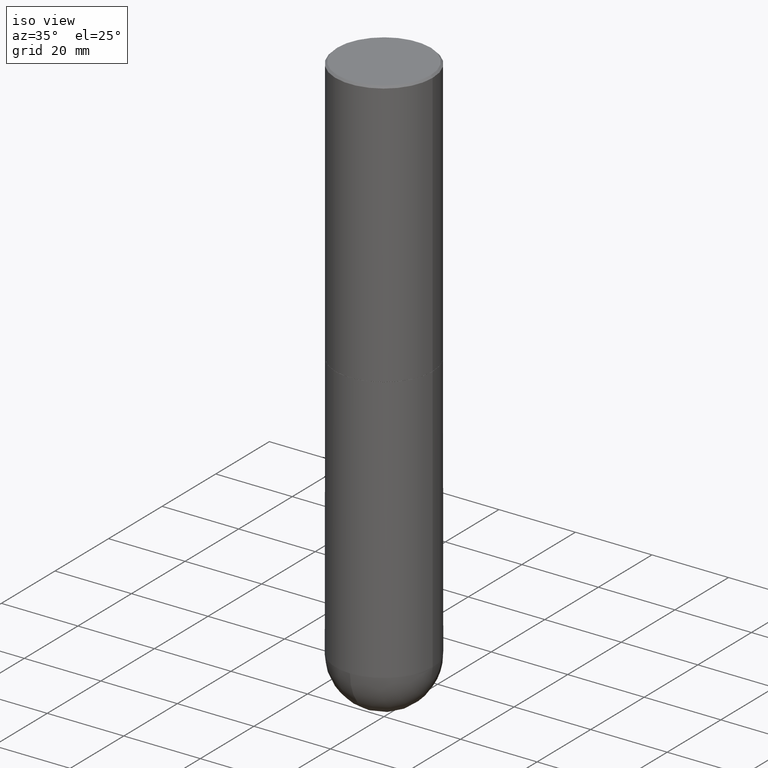
[diagram: clean part render]
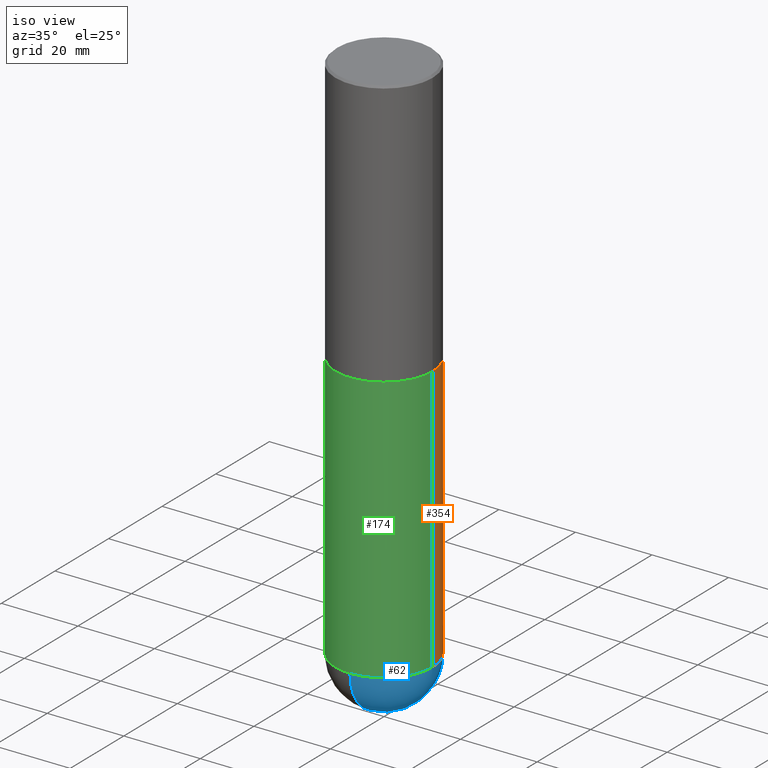
[diagram: same view with three faces highlighted in distinct colors, each labeled with its STEP entity id]
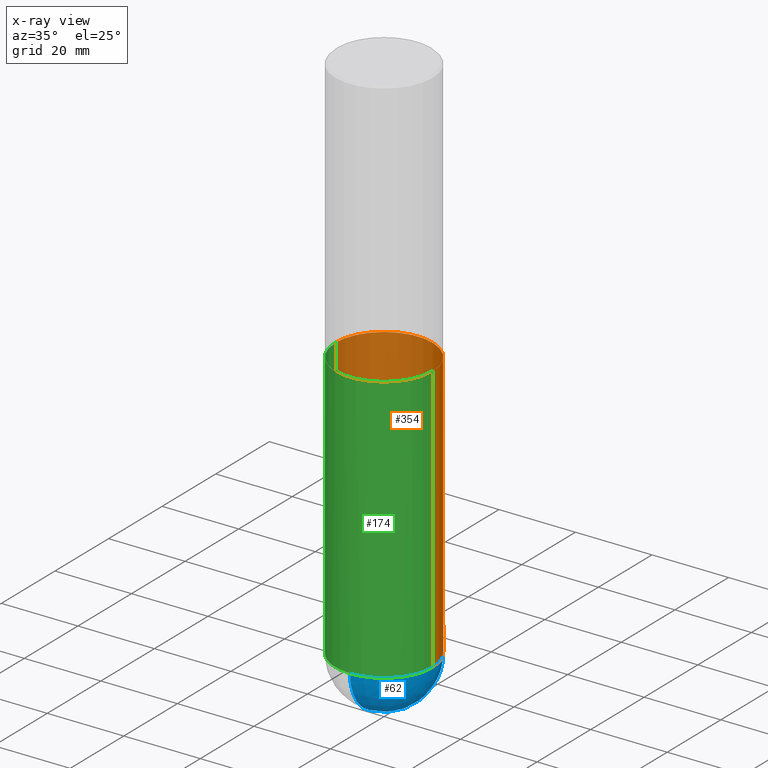
[diagram: x-ray of the same camera — body ghosted, the three highlighted faces saturated]
A machine part, iso view with three faces highlighted in distinct colors.
The next image is the same camera in x-ray (body ghosted, the three faces saturated) — at least one of them is partly hidden behind the body in this view.
Their STEP definitions:

[orange] entity #354 — the highlighted cylindrical surface (partial cylindrical patch) has radius 12.7 mm, axis along (-0, 0, 1).
#6 = CARTESIAN_POINT ( 'NONE',  ( 3.491481338843265489E-15, 0.4999999999999805711, -5.500000000000002665 ) ) ;
#10 = VERTEX_POINT ( 'NONE', #6 ) ;
#18 = DIRECTION ( 'NONE',  ( -2.445468806185136597E-29, 3.491481338843145583E-15, 1.000000000000000000 ) ) ;
#23 = CARTESIAN_POINT ( 'NONE',  ( -0.5000000000000000000, -1.084964684392748096E-14, -5.500000000000000888 ) ) ;
#24 = DIRECTION ( 'NONE',  ( 1.000000000000000000, -6.982962677686270655E-15, 0.000000000000000000 ) ) ;
#33 = EDGE_LOOP ( 'NONE', ( #404, #180, #411, #40, #331 ) ) ;
#40 = ORIENTED_EDGE ( 'NONE', *, *, #143, .F. ) ;
#63 = DIRECTION ( 'NONE',  ( -2.445468806185136877E-29, 3.491481338843145188E-15, 1.000000000000000000 ) ) ;
#66 = VECTOR ( 'NONE', #63, 39.37007874015748143 ) ;
#71 = FACE_OUTER_BOUND ( 'NONE', #33, .T. ) ;
#73 = CIRCLE ( 'NONE', #198, 0.5000000000000000000 ) ;
#99 = VERTEX_POINT ( 'NONE', #173 ) ;
#102 = AXIS2_PLACEMENT_3D ( 'NONE', #246, #18, #240 ) ;
#111 = CIRCLE ( 'NONE', #150, 0.5000000000000000000 ) ;
#112 = CARTESIAN_POINT ( 'NONE',  ( 0.5000000000000000000, -3.491481338843133355E-15, 2.438088387897967896E-29 ) ) ;
#125 = EDGE_CURVE ( 'NONE', #99, #320, #374, .T. ) ;
#126 = DIRECTION ( 'NONE',  ( -2.445468806185136597E-29, 3.491481338843145583E-15, 1.000000000000000000 ) ) ;
#128 = CARTESIAN_POINT ( 'NONE',  ( 0.5000000000000000000, -1.789384186157111367E-14, -5.500000000000000888 ) ) ;
#143 = EDGE_CURVE ( 'NONE', #381, #99, #366, .T. ) ;
#150 = AXIS2_PLACEMENT_3D ( 'NONE', #160, #126, #322 ) ;
#151 = CARTESIAN_POINT ( 'NONE',  ( 1.345007843401825128E-28, -1.920314736363730603E-14, -5.500000000000000888 ) ) ;
#160 = CARTESIAN_POINT ( 'NONE',  ( 1.345007843401825128E-28, -1.920314736363730603E-14, -5.500000000000000888 ) ) ;
#163 = CARTESIAN_POINT ( 'NONE',  ( 0.000000000000000000, 0.000000000000000000, 0.000000000000000000 ) ) ;
#173 = CARTESIAN_POINT ( 'NONE',  ( 0.5000000000000000000, -1.309305502066178637E-14, -2.750000000000000444 ) ) ;
#180 = ORIENTED_EDGE ( 'NONE', *, *, #384, .T. ) ;
#184 = AXIS2_PLACEMENT_3D ( 'NONE', #163, #412, #227 ) ;
#186 = EDGE_CURVE ( 'NONE', #381, #10, #73, .T. ) ;
#197 = VERTEX_POINT ( 'NONE', #23 ) ;
#198 = AXIS2_PLACEMENT_3D ( 'NONE', #151, #349, #24 ) ;
#223 = LINE ( 'NONE', #410, #66 ) ;
#227 = DIRECTION ( 'NONE',  ( 1.000000000000000000, -6.982962677686266711E-15, 4.876176775795935793E-29 ) ) ;
#240 = DIRECTION ( 'NONE',  ( 1.000000000000000000, -6.982962677686266711E-15, 0.000000000000000000 ) ) ;
#244 = DIRECTION ( 'NONE',  ( -2.445468806185136877E-29, 3.491481338843145188E-15, 1.000000000000000000 ) ) ;
#246 = CARTESIAN_POINT ( 'NONE',  ( 6.725039217009125641E-29, -9.601573681818653015E-15, -2.750000000000000444 ) ) ;
#255 = CARTESIAN_POINT ( 'NONE',  ( -0.5000000000000000000, -1.084964684392747780E-14, -2.750000000000000444 ) ) ;
#305 = EDGE_CURVE ( 'NONE', #10, #197, #111, .T. ) ;
#320 = VERTEX_POINT ( 'NONE', #255 ) ;
#322 = DIRECTION ( 'NONE',  ( 1.000000000000000000, -6.982962677686270655E-15, 0.000000000000000000 ) ) ;
#327 = CYLINDRICAL_SURFACE ( 'NONE', #184, 0.5000000000000000000 ) ;
#331 = ORIENTED_EDGE ( 'NONE', *, *, #186, .T. ) ;
#349 = DIRECTION ( 'NONE',  ( -2.445468806185136597E-29, 3.491481338843145583E-15, 1.000000000000000000 ) ) ;
#354 = ADVANCED_FACE ( 'NONE', ( #71 ), #327, .T. ) ;
#366 = LINE ( 'NONE', #112, #392 ) ;
#374 = CIRCLE ( 'NONE', #102, 0.5000000000000000000 ) ;
#381 = VERTEX_POINT ( 'NONE', #128 ) ;
#384 = EDGE_CURVE ( 'NONE', #197, #320, #223, .T. ) ;
#392 = VECTOR ( 'NONE', #244, 39.37007874015748143 ) ;
#404 = ORIENTED_EDGE ( 'NONE', *, *, #305, .T. ) ;
#410 = CARTESIAN_POINT ( 'NONE',  ( -0.5000000000000000000, 3.552713678800500929E-15, -2.459467545127452891E-29 ) ) ;
#411 = ORIENTED_EDGE ( 'NONE', *, *, #125, .F. ) ;
#412 = DIRECTION ( 'NONE',  ( -2.445468806185136597E-29, 3.491481338843145583E-15, 1.000000000000000000 ) ) ;

[blue] entity #62 — the highlighted spherical surface has radius 12.7 mm.
#6 = CARTESIAN_POINT ( 'NONE',  ( 3.491481338843265489E-15, 0.4999999999999805711, -5.500000000000002665 ) ) ;
#7 = CARTESIAN_POINT ( 'NONE',  ( 1.345007843401825128E-28, -1.920314736363730603E-14, -5.500000000000000888 ) ) ;
#10 = VERTEX_POINT ( 'NONE', #6 ) ;
#24 = DIRECTION ( 'NONE',  ( 1.000000000000000000, -6.982962677686270655E-15, 0.000000000000000000 ) ) ;
#26 = ORIENTED_EDGE ( 'NONE', *, *, #48, .T. ) ;
#30 = CARTESIAN_POINT ( 'NONE',  ( -3.552713678800368006E-15, -0.5000000000000194289, -5.499999999999999112 ) ) ;
#48 = EDGE_CURVE ( 'NONE', #313, #10, #59, .T. ) ;
#49 = FACE_OUTER_BOUND ( 'NONE', #278, .T. ) ;
#59 = CIRCLE ( 'NONE', #208, 0.5000000000000000000 ) ;
#62 = ADVANCED_FACE ( 'NONE', ( #49 ), #104, .T. ) ;
#64 = ORIENTED_EDGE ( 'NONE', *, *, #186, .F. ) ;
#73 = CIRCLE ( 'NONE', #198, 0.5000000000000000000 ) ;
#104 = SPHERICAL_SURFACE ( 'NONE', #260, 0.5000000000000000000 ) ;
#116 = CARTESIAN_POINT ( 'NONE',  ( 1.311895865610436840E-28, -1.967732973177735475E-14, -5.500000000000000888 ) ) ;
#121 = DIRECTION ( 'NONE',  ( -1.000000000000000000, 7.105427357601001070E-15, -4.926315508542082329E-29 ) ) ;
#123 = AXIS2_PLACEMENT_3D ( 'NONE', #116, #121, #353 ) ;
#128 = CARTESIAN_POINT ( 'NONE',  ( 0.5000000000000000000, -1.789384186157111367E-14, -5.500000000000000888 ) ) ;
#151 = CARTESIAN_POINT ( 'NONE',  ( 1.345007843401825128E-28, -1.920314736363730603E-14, -5.500000000000000888 ) ) ;
#157 = CIRCLE ( 'NONE', #285, 0.5000000000000000000 ) ;
#186 = EDGE_CURVE ( 'NONE', #381, #10, #73, .T. ) ;
#198 = AXIS2_PLACEMENT_3D ( 'NONE', #151, #349, #24 ) ;
#200 = ORIENTED_EDGE ( 'NONE', *, *, #398, .F. ) ;
#203 = CARTESIAN_POINT ( 'NONE',  ( 1.311895865610436840E-28, -1.967732973177735475E-14, -5.500000000000000888 ) ) ;
#208 = AXIS2_PLACEMENT_3D ( 'NONE', #203, #273, #399 ) ;
#213 = DIRECTION ( 'NONE',  ( -1.000000000000000000, 6.982962677686265922E-15, -4.883557194083113462E-29 ) ) ;
#233 = EDGE_CURVE ( 'NONE', #313, #299, #241, .T. ) ;
#241 = CIRCLE ( 'NONE', #123, 0.5000000000000000000 ) ;
#259 = DIRECTION ( 'NONE',  ( 1.000000000000000000, -6.982962677686270655E-15, 0.000000000000000000 ) ) ;
#260 = AXIS2_PLACEMENT_3D ( 'NONE', #393, #213, #343 ) ;
#267 = DIRECTION ( 'NONE',  ( -2.445468806185136597E-29, 3.491481338843145583E-15, 1.000000000000000000 ) ) ;
#273 = DIRECTION ( 'NONE',  ( 1.000000000000000000, -6.982962677686265922E-15, 4.883557194083112340E-29 ) ) ;
#278 = EDGE_LOOP ( 'NONE', ( #282, #26, #64, #200 ) ) ;
#282 = ORIENTED_EDGE ( 'NONE', *, *, #233, .F. ) ;
#285 = AXIS2_PLACEMENT_3D ( 'NONE', #7, #267, #259 ) ;
#299 = VERTEX_POINT ( 'NONE', #30 ) ;
#313 = VERTEX_POINT ( 'NONE', #361 ) ;
#343 = DIRECTION ( 'NONE',  ( 6.982962677686265922E-15, 1.000000000000000000, -4.370956789862821150E-15 ) ) ;
#349 = DIRECTION ( 'NONE',  ( -2.445468806185136597E-29, 3.491481338843145583E-15, 1.000000000000000000 ) ) ;
#353 = DIRECTION ( 'NONE',  ( -7.105427357601001070E-15, -1.000000000000000000, 0.000000000000000000 ) ) ;
#361 = CARTESIAN_POINT ( 'NONE',  ( 1.436307221642642085E-28, -2.139245423122024710E-14, -6.000000000000000888 ) ) ;
#381 = VERTEX_POINT ( 'NONE', #128 ) ;
#393 = CARTESIAN_POINT ( 'NONE',  ( 1.311895865610436840E-28, -1.967732973177735475E-14, -5.500000000000000888 ) ) ;
#398 = EDGE_CURVE ( 'NONE', #299, #381, #157, .T. ) ;
#399 = DIRECTION ( 'NONE',  ( 6.982962677686265922E-15, 1.000000000000000000, 0.000000000000000000 ) ) ;

[green] entity #174 — the highlighted cylindrical surface (partial cylindrical patch) has radius 12.7 mm, axis along (-0, 0, 1).
#7 = CARTESIAN_POINT ( 'NONE',  ( 1.345007843401825128E-28, -1.920314736363730603E-14, -5.500000000000000888 ) ) ;
#19 = EDGE_CURVE ( 'NONE', #197, #299, #345, .T. ) ;
#23 = CARTESIAN_POINT ( 'NONE',  ( -0.5000000000000000000, -1.084964684392748096E-14, -5.500000000000000888 ) ) ;
#30 = CARTESIAN_POINT ( 'NONE',  ( -3.552713678800368006E-15, -0.5000000000000194289, -5.499999999999999112 ) ) ;
#31 = AXIS2_PLACEMENT_3D ( 'NONE', #310, #185, #219 ) ;
#63 = DIRECTION ( 'NONE',  ( -2.445468806185136877E-29, 3.491481338843145188E-15, 1.000000000000000000 ) ) ;
#66 = VECTOR ( 'NONE', #63, 39.37007874015748143 ) ;
#68 = ORIENTED_EDGE ( 'NONE', *, *, #143, .T. ) ;
#91 = DIRECTION ( 'NONE',  ( 1.000000000000000000, -6.982962677686266711E-15, 0.000000000000000000 ) ) ;
#99 = VERTEX_POINT ( 'NONE', #173 ) ;
#112 = CARTESIAN_POINT ( 'NONE',  ( 0.5000000000000000000, -3.491481338843133355E-15, 2.438088387897967896E-29 ) ) ;
#117 = AXIS2_PLACEMENT_3D ( 'NONE', #214, #136, #91 ) ;
#128 = CARTESIAN_POINT ( 'NONE',  ( 0.5000000000000000000, -1.789384186157111367E-14, -5.500000000000000888 ) ) ;
#131 = ORIENTED_EDGE ( 'NONE', *, *, #19, .T. ) ;
#136 = DIRECTION ( 'NONE',  ( -2.445468806185136597E-29, 3.491481338843145583E-15, 1.000000000000000000 ) ) ;
#143 = EDGE_CURVE ( 'NONE', #381, #99, #366, .T. ) ;
#152 = AXIS2_PLACEMENT_3D ( 'NONE', #362, #288, #159 ) ;
#154 = EDGE_CURVE ( 'NONE', #320, #99, #347, .T. ) ;
#157 = CIRCLE ( 'NONE', #285, 0.5000000000000000000 ) ;
#159 = DIRECTION ( 'NONE',  ( 1.000000000000000000, -6.982962677686270655E-15, 0.000000000000000000 ) ) ;
#173 = CARTESIAN_POINT ( 'NONE',  ( 0.5000000000000000000, -1.309305502066178637E-14, -2.750000000000000444 ) ) ;
#174 = ADVANCED_FACE ( 'NONE', ( #179 ), #252, .T. ) ;
#179 = FACE_OUTER_BOUND ( 'NONE', #264, .T. ) ;
#185 = DIRECTION ( 'NONE',  ( -2.445468806185136597E-29, 3.491481338843145583E-15, 1.000000000000000000 ) ) ;
#197 = VERTEX_POINT ( 'NONE', #23 ) ;
#214 = CARTESIAN_POINT ( 'NONE',  ( 6.725039217009125641E-29, -9.601573681818653015E-15, -2.750000000000000444 ) ) ;
#219 = DIRECTION ( 'NONE',  ( 1.000000000000000000, -6.982962677686266711E-15, 4.876176775795935793E-29 ) ) ;
#223 = LINE ( 'NONE', #410, #66 ) ;
#244 = DIRECTION ( 'NONE',  ( -2.445468806185136877E-29, 3.491481338843145188E-15, 1.000000000000000000 ) ) ;
#252 = CYLINDRICAL_SURFACE ( 'NONE', #31, 0.5000000000000000000 ) ;
#255 = CARTESIAN_POINT ( 'NONE',  ( -0.5000000000000000000, -1.084964684392747780E-14, -2.750000000000000444 ) ) ;
#259 = DIRECTION ( 'NONE',  ( 1.000000000000000000, -6.982962677686270655E-15, 0.000000000000000000 ) ) ;
#264 = EDGE_LOOP ( 'NONE', ( #358, #131, #290, #68, #286 ) ) ;
#267 = DIRECTION ( 'NONE',  ( -2.445468806185136597E-29, 3.491481338843145583E-15, 1.000000000000000000 ) ) ;
#285 = AXIS2_PLACEMENT_3D ( 'NONE', #7, #267, #259 ) ;
#286 = ORIENTED_EDGE ( 'NONE', *, *, #154, .F. ) ;
#288 = DIRECTION ( 'NONE',  ( -2.445468806185136597E-29, 3.491481338843145583E-15, 1.000000000000000000 ) ) ;
#290 = ORIENTED_EDGE ( 'NONE', *, *, #398, .T. ) ;
#299 = VERTEX_POINT ( 'NONE', #30 ) ;
#310 = CARTESIAN_POINT ( 'NONE',  ( 0.000000000000000000, 0.000000000000000000, 0.000000000000000000 ) ) ;
#320 = VERTEX_POINT ( 'NONE', #255 ) ;
#345 = CIRCLE ( 'NONE', #152, 0.5000000000000000000 ) ;
#347 = CIRCLE ( 'NONE', #117, 0.5000000000000000000 ) ;
#358 = ORIENTED_EDGE ( 'NONE', *, *, #384, .F. ) ;
#362 = CARTESIAN_POINT ( 'NONE',  ( 1.345007843401825128E-28, -1.920314736363730603E-14, -5.500000000000000888 ) ) ;
#366 = LINE ( 'NONE', #112, #392 ) ;
#381 = VERTEX_POINT ( 'NONE', #128 ) ;
#384 = EDGE_CURVE ( 'NONE', #197, #320, #223, .T. ) ;
#392 = VECTOR ( 'NONE', #244, 39.37007874015748143 ) ;
#398 = EDGE_CURVE ( 'NONE', #299, #381, #157, .T. ) ;
#410 = CARTESIAN_POINT ( 'NONE',  ( -0.5000000000000000000, 3.552713678800500929E-15, -2.459467545127452891E-29 ) ) ;